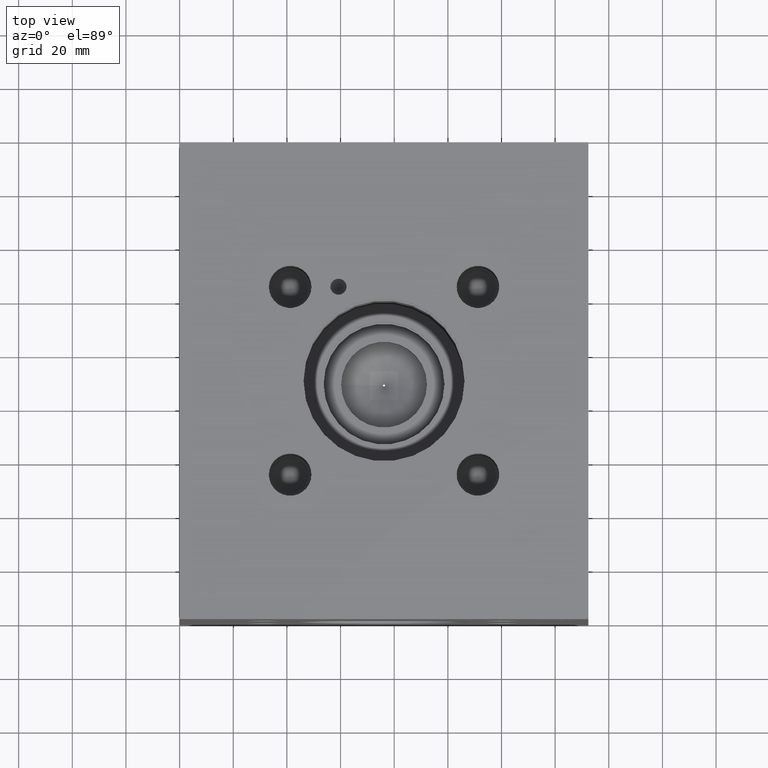
[diagram: clean part render]
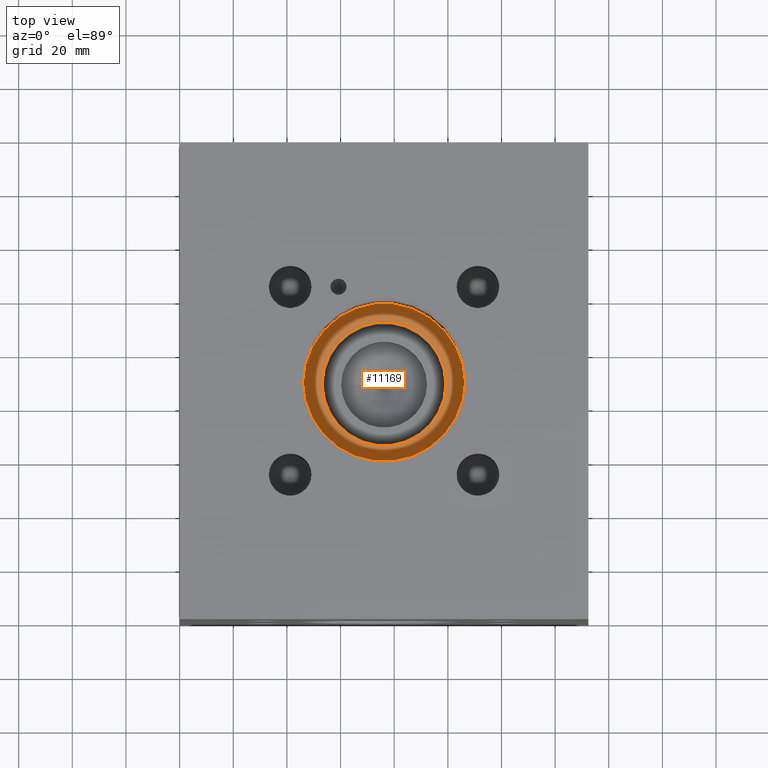
[diagram: same view with one face highlighted and labeled with its STEP entity id]
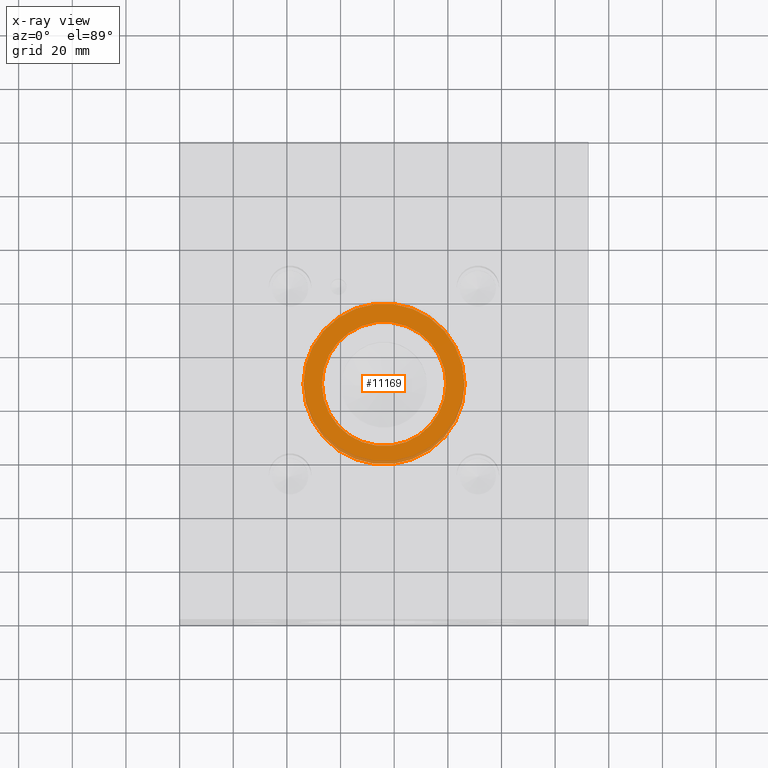
[diagram: x-ray of the same camera — body ghosted, the highlighted face saturated]
A machine part, top view. The second image highlights one B-rep face of the part: STEP entity #11169.
The next image is the same camera in x-ray: the body ghosted, the highlighted face saturated — about 6% of this face is hidden behind the body in this view.
In plain terms, the highlighted planar face has unit normal (0, 0, -1).
Its self-contained STEP definition (entity closure, byte-faithful):
#649=CIRCLE('',#11895,30.0101);
#650=CIRCLE('',#11896,30.0101);
#651=CIRCLE('',#11898,23.1648);
#652=CIRCLE('',#11899,23.1648);
#744=FACE_BOUND('',#1966,.T.);
#1315=FACE_OUTER_BOUND('',#1965,.T.);
#1965=EDGE_LOOP('',(#9743,#9744));
#1966=EDGE_LOOP('',(#9745,#9746));
#5217=VERTEX_POINT('',#18828);
#5218=VERTEX_POINT('',#18830);
#5219=VERTEX_POINT('',#18834);
#5220=VERTEX_POINT('',#18835);
#6745=EDGE_CURVE('',#5217,#5218,#649,.T.);
#6746=EDGE_CURVE('',#5218,#5217,#650,.T.);
#6747=EDGE_CURVE('',#5219,#5220,#651,.T.);
#6748=EDGE_CURVE('',#5220,#5219,#652,.T.);
#9743=ORIENTED_EDGE('',*,*,#6746,.F.);
#9744=ORIENTED_EDGE('',*,*,#6745,.F.);
#9745=ORIENTED_EDGE('',*,*,#6747,.T.);
#9746=ORIENTED_EDGE('',*,*,#6748,.T.);
#10190=PLANE('',#11897);
#11169=ADVANCED_FACE('',(#1315,#744),#10190,.F.);
#11895=AXIS2_PLACEMENT_3D('',#18831,#14404,#14405);
#11896=AXIS2_PLACEMENT_3D('',#18832,#14406,#14407);
#11897=AXIS2_PLACEMENT_3D('',#18833,#14408,#14409);
#11898=AXIS2_PLACEMENT_3D('',#18836,#14410,#14411);
#11899=AXIS2_PLACEMENT_3D('',#18837,#14412,#14413);
#14404=DIRECTION('center_axis',(0.,0.,-1.));
#14405=DIRECTION('ref_axis',(1.,0.,0.));
#14406=DIRECTION('center_axis',(0.,0.,-1.));
#14407=DIRECTION('ref_axis',(1.,0.,0.));
#14408=DIRECTION('center_axis',(0.,0.,-1.));
#14409=DIRECTION('ref_axis',(-1.,0.,0.));
#14410=DIRECTION('center_axis',(0.,0.,-1.));
#14411=DIRECTION('ref_axis',(1.,0.,0.));
#14412=DIRECTION('center_axis',(0.,0.,-1.));
#14413=DIRECTION('ref_axis',(1.,0.,0.));
#18828=CARTESIAN_POINT('',(46.1899,88.9,69.6976));
#18830=CARTESIAN_POINT('',(106.2101,88.9,69.6976));
#18831=CARTESIAN_POINT('Origin',(76.2,88.9,69.6976));
#18832=CARTESIAN_POINT('Origin',(76.2,88.9,69.6976));
#18833=CARTESIAN_POINT('Origin',(99.3648,88.9,69.6976));
#18834=CARTESIAN_POINT('',(99.3648,88.9,69.6976));
#18835=CARTESIAN_POINT('',(53.0352,88.9,69.6976));
#18836=CARTESIAN_POINT('Origin',(76.2,88.9,69.6976));
#18837=CARTESIAN_POINT('Origin',(76.2,88.9,69.6976));